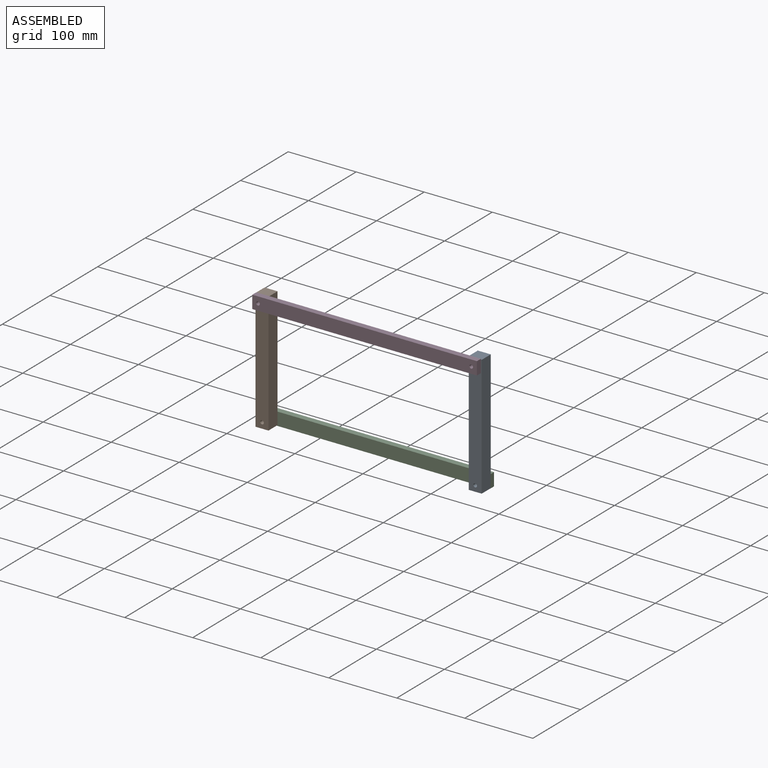
[diagram: assembled view]
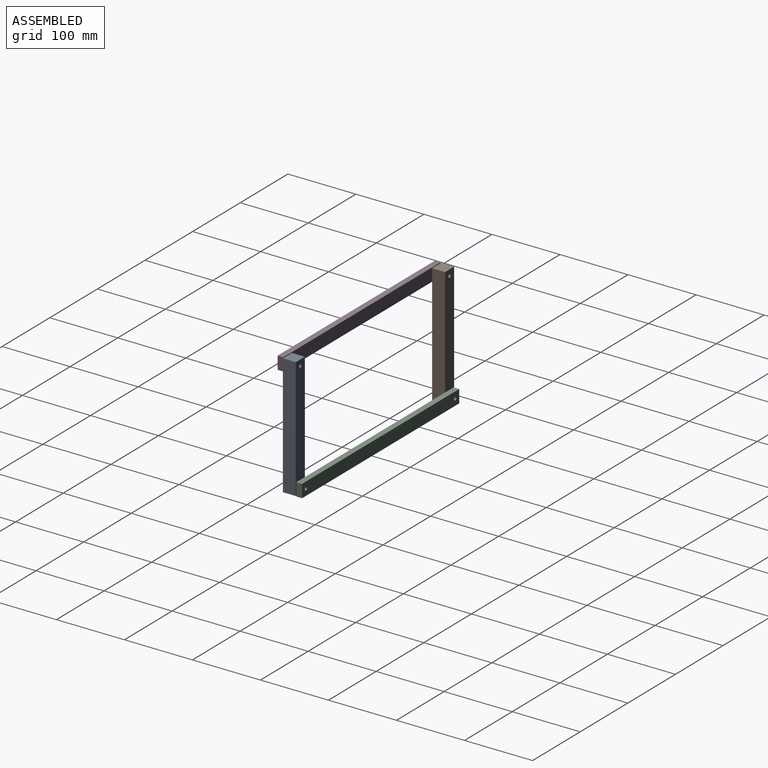
[diagram: assembled view, second angle]
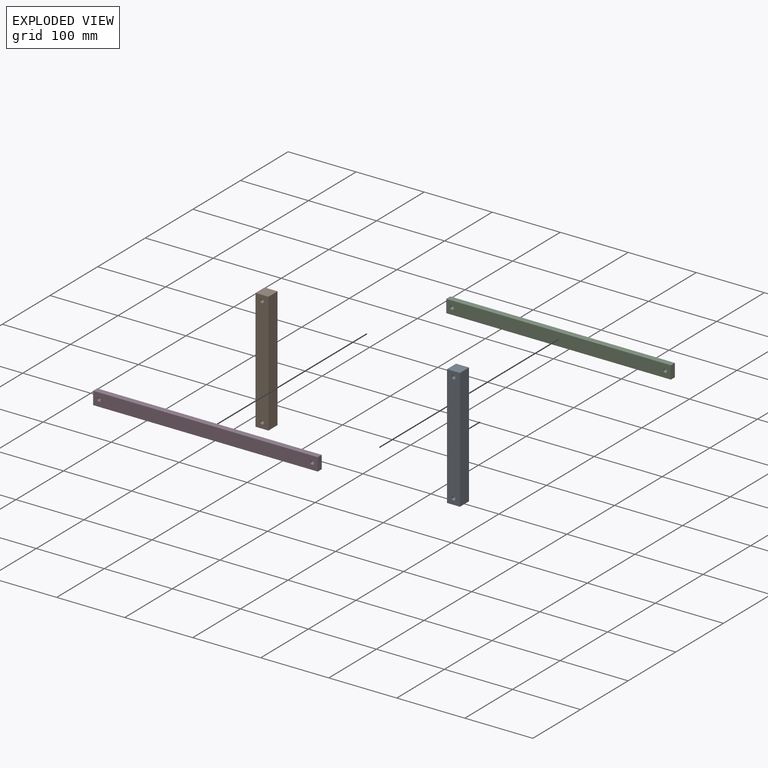
[diagram: exploded view]
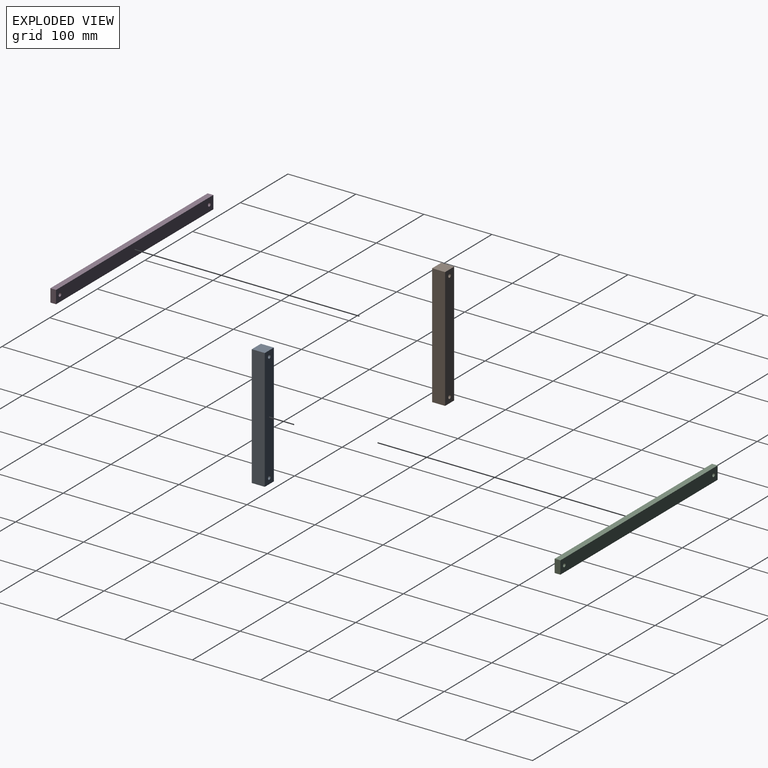
[diagram: exploded view, second angle]
ASSEMBLY  parts=4 mates=4
PART A: 8 faces, bbox 177.8x19.1x19.1 mm
  f0: plane 177.8x19.05mm, normal (0,0,-1), area 3387.1mm2, adj f1,f3,f4,f5
  f1: plane 19.05x19.05mm, normal (1,0,0), area 362.9mm2, adj f0,f2,f4,f5
  f2: plane 177.8x19.05mm, normal (0,0,1), area 3387.1mm2, adj f1,f3,f4,f5
  f3: plane 19.05x19.05mm, normal (-1,0,0), area 362.9mm2, adj f0,f2,f4,f5
  f4: plane 177.8x19.05mm, normal (0,-1,0), area 3342.8mm2, adj f0,f1,f2,f3,f6,f7
  f5: plane 177.8x19.05mm, normal (0,1,0), area 3342.8mm2, adj f0,f1,f2,f3,f6,f7
  f6: cylinder r=2.65mm len=19.05mm, axis (0,-1,0), area 317.7mm2, adj f4,f5
  f7: cylinder r=2.65mm len=19.05mm, axis (0,-1,0), area 317.7mm2, adj f4,f5
PART B: same geometry as A
PART C: 8 faces, bbox 330.2x8.4x19.1 mm
  f0: plane 19.05x8.38mm, normal (1,0,0), area 159.7mm2, adj f1,f3,f4,f5
  f1: plane 330.2x8.38mm, normal (0,0,1), area 2767.7mm2, adj f0,f2,f4,f5
  f2: plane 19.05x8.38mm, normal (-1,0,0), area 159.7mm2, adj f1,f3,f4,f5
  f3: plane 330.2x8.38mm, normal (0,0,-1), area 2767.7mm2, adj f0,f2,f4,f5
  f4: plane 330.2x19.05mm, normal (0,-1,0), area 6246mm2, adj f0,f1,f2,f3,f6,f7
  f5: plane 330.2x19.05mm, normal (0,1,0), area 6246mm2, adj f0,f1,f2,f3,f6,f7
  f6: cylinder r=2.65mm len=8.38mm, axis (0,-1,0), area 139.8mm2, adj f4,f5
  f7: cylinder r=2.65mm len=8.38mm, axis (0,-1,0), area 139.8mm2, adj f4,f5
PART D: same geometry as C
PLACE A rot(axis=(0,-1,0),90deg) t=(48.68,33.1,-5.75)mm fixed
PLACE B rot(axis=(0,-1,0),90deg) t=(-264.75,33.1,-5.75)mm
PLACE C rot(axis=(0,-1,0),0deg) t=(-108.03,46.81,-86.27)mm
PLACE D rot(axis=(0,-1,0),0deg) t=(-108.03,19.38,74.76)mm
MATE revolute D.f6 <-> B.f7  axis (0,1,0) through (-264.75,23.57,74.76)mm
MATE revolute A.f7 <-> D.f7  axis (0,-1,0) through (48.68,23.57,74.76)mm
MATE revolute C.f6 <-> B.f6  axis (0,-1,0) through (-264.75,42.62,-86.27)mm
MATE revolute A.f6 <-> C.f7  axis (0,1,0) through (48.68,42.62,-86.27)mm
